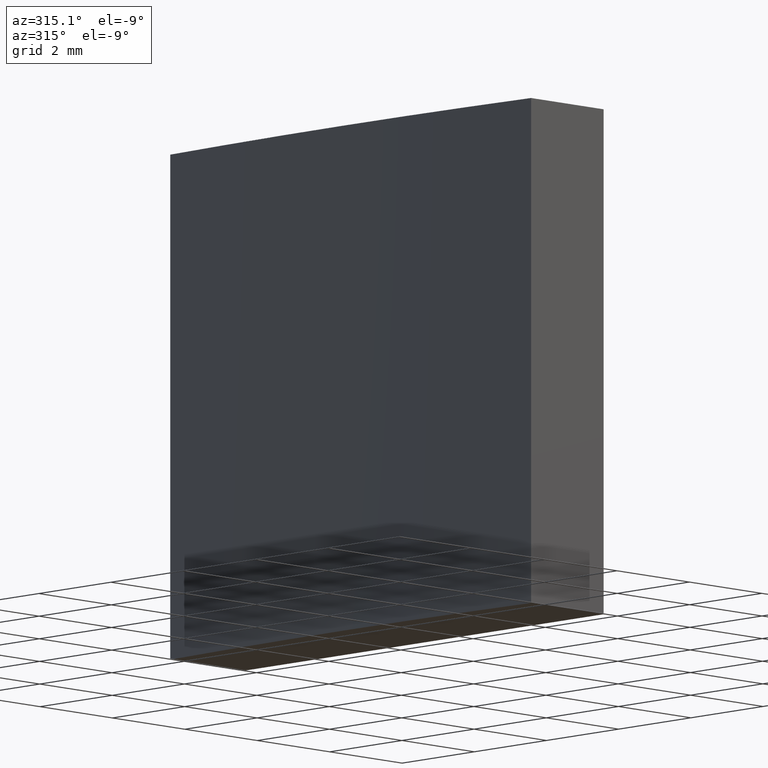
[diagram: clean part render]
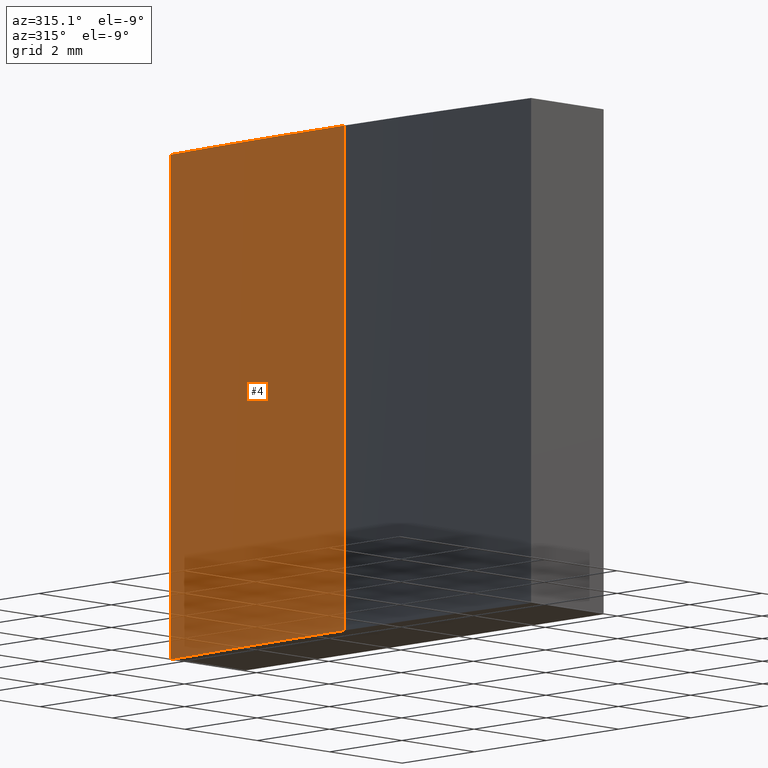
[diagram: same view with one face highlighted and labeled with its STEP entity id]
A machine part, auxiliary view. The second image highlights one B-rep face of the part: STEP entity #4.
In plain terms, the highlighted cylindrical surface (partial cylindrical patch) has radius 77.55 mm, axis along (-0, -0, -1).
Its self-contained STEP definition (entity closure, byte-faithful):
#2 = CARTESIAN_POINT ( 'NONE',  ( -77.38864580802534476, 4.999999999999997335, 10.00000000000000000 ) ) ;
#4 = ADVANCED_FACE ( 'NONE', ( #59 ), #125, .T. ) ;
#8 = EDGE_CURVE ( 'NONE', #18, #69, #128, .T. ) ;
#18 = VERTEX_POINT ( 'NONE', #2 ) ;
#37 = ORIENTED_EDGE ( 'NONE', *, *, #52, .F. ) ;
#42 = DIRECTION ( 'NONE',  ( 1.000000000000000000, 0.000000000000000000, 0.000000000000000000 ) ) ;
#43 = CARTESIAN_POINT ( 'NONE',  ( -77.54999999999999716, 0.000000000000000000, 10.00000000000000000 ) ) ;
#52 = EDGE_CURVE ( 'NONE', #189, #100, #211, .T. ) ;
#55 = EDGE_CURVE ( 'NONE', #69, #100, #75, .T. ) ;
#57 = AXIS2_PLACEMENT_3D ( 'NONE', #229, #252, #42 ) ;
#59 = FACE_OUTER_BOUND ( 'NONE', #245, .T. ) ;
#66 = CARTESIAN_POINT ( 'NONE',  ( -77.54999999999999716, 0.000000000000000000, 10.00000000000000000 ) ) ;
#69 = VERTEX_POINT ( 'NONE', #234 ) ;
#75 = CIRCLE ( 'NONE', #57, 77.54999999999999716 ) ;
#78 = ORIENTED_EDGE ( 'NONE', *, *, #55, .T. ) ;
#79 = DIRECTION ( 'NONE',  ( -1.000000000000000000, 0.000000000000000000, 0.000000000000000000 ) ) ;
#100 = VERTEX_POINT ( 'NONE', #251 ) ;
#102 = ORIENTED_EDGE ( 'NONE', *, *, #8, .T. ) ;
#103 = CIRCLE ( 'NONE', #187, 77.54999999999999716 ) ;
#112 = AXIS2_PLACEMENT_3D ( 'NONE', #201, #190, #79 ) ;
#118 = VECTOR ( 'NONE', #174, 1000.000000000000000 ) ;
#125 = CYLINDRICAL_SURFACE ( 'NONE', #112, 77.54999999999999716 ) ;
#128 = LINE ( 'NONE', #148, #212 ) ;
#148 = CARTESIAN_POINT ( 'NONE',  ( -77.38864580802534476, 4.999999999999997335, 10.00000000000000000 ) ) ;
#174 = DIRECTION ( 'NONE',  ( -0.000000000000000000, -0.000000000000000000, -1.000000000000000000 ) ) ;
#183 = DIRECTION ( 'NONE',  ( 0.000000000000000000, 0.000000000000000000, 1.000000000000000000 ) ) ;
#187 = AXIS2_PLACEMENT_3D ( 'NONE', #213, #183, #241 ) ;
#189 = VERTEX_POINT ( 'NONE', #66 ) ;
#190 = DIRECTION ( 'NONE',  ( -0.000000000000000000, -0.000000000000000000, -1.000000000000000000 ) ) ;
#191 = ORIENTED_EDGE ( 'NONE', *, *, #231, .F. ) ;
#201 = CARTESIAN_POINT ( 'NONE',  ( 0.000000000000000000, 0.000000000000000000, 10.00000000000000000 ) ) ;
#211 = LINE ( 'NONE', #43, #118 ) ;
#212 = VECTOR ( 'NONE', #235, 1000.000000000000000 ) ;
#213 = CARTESIAN_POINT ( 'NONE',  ( 0.000000000000000000, 0.000000000000000000, 10.00000000000000000 ) ) ;
#229 = CARTESIAN_POINT ( 'NONE',  ( 0.000000000000000000, 0.000000000000000000, 0.000000000000000000 ) ) ;
#231 = EDGE_CURVE ( 'NONE', #18, #189, #103, .T. ) ;
#234 = CARTESIAN_POINT ( 'NONE',  ( -77.38864580802534476, 4.999999999999997335, 0.000000000000000000 ) ) ;
#235 = DIRECTION ( 'NONE',  ( -0.000000000000000000, -0.000000000000000000, -1.000000000000000000 ) ) ;
#241 = DIRECTION ( 'NONE',  ( 1.000000000000000000, 0.000000000000000000, 0.000000000000000000 ) ) ;
#245 = EDGE_LOOP ( 'NONE', ( #37, #191, #102, #78 ) ) ;
#251 = CARTESIAN_POINT ( 'NONE',  ( -77.54999999999999716, 0.000000000000000000, 0.000000000000000000 ) ) ;
#252 = DIRECTION ( 'NONE',  ( 0.000000000000000000, 0.000000000000000000, 1.000000000000000000 ) ) ;